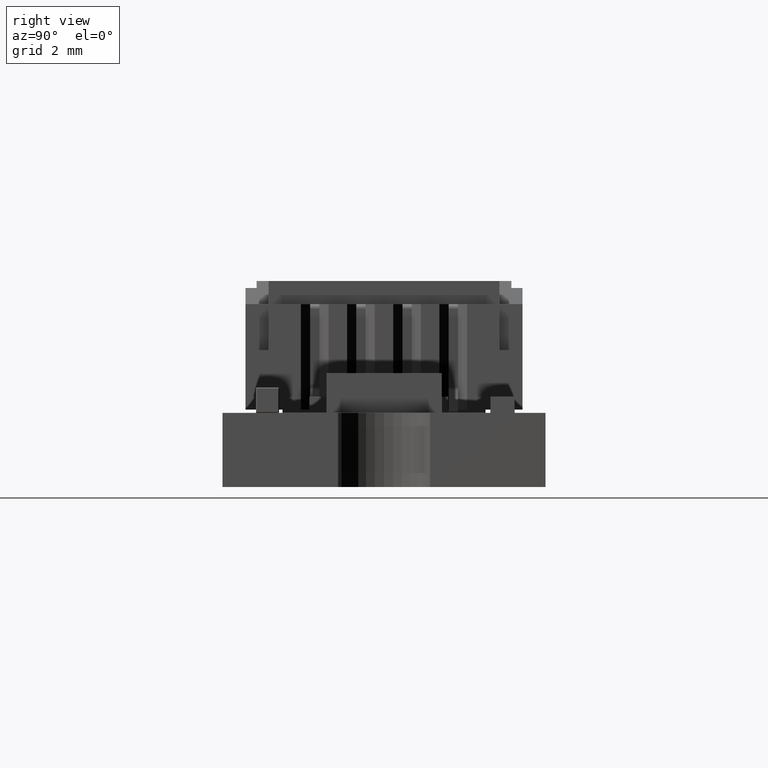
[diagram: clean part render]
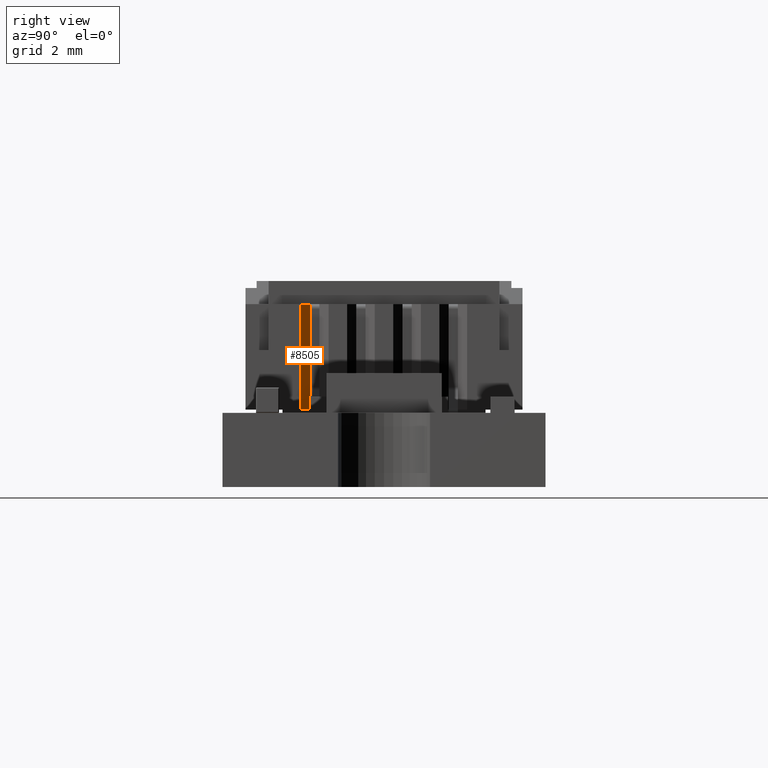
[diagram: same view with one face highlighted and labeled with its STEP entity id]
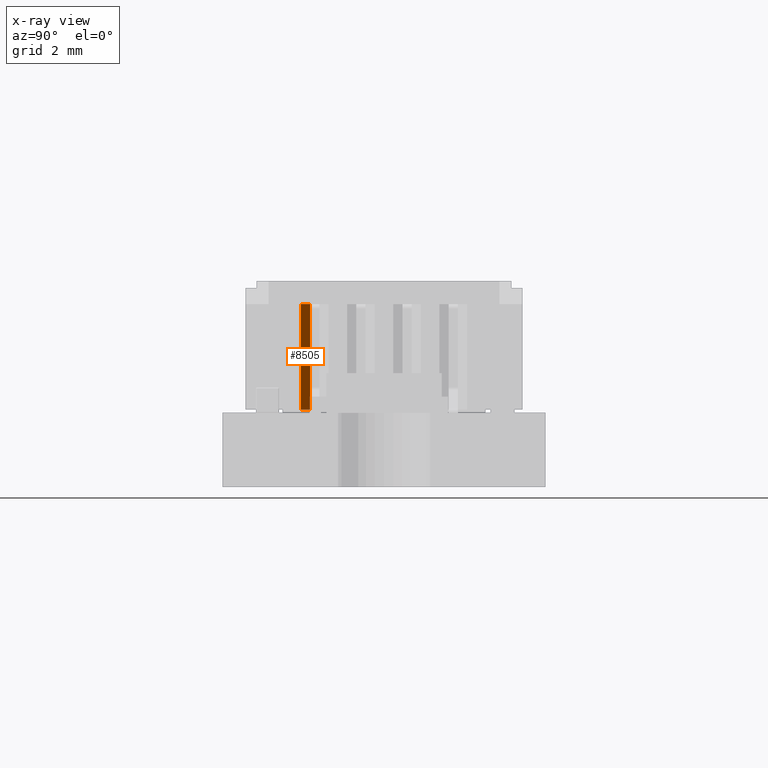
[diagram: x-ray of the same camera — body ghosted, the highlighted face saturated]
A machine part, right view. The second image highlights one B-rep face of the part: STEP entity #8505.
The next image is the same camera in x-ray: the body ghosted, the highlighted face saturated — about 1% of this face is hidden behind the body in this view.
In plain terms, the highlighted planar face has unit normal (0.7071, 0.7071, 0).
Its self-contained STEP definition (entity closure, byte-faithful):
#6371 = VERTEX_POINT('',#6372);
#6372 = CARTESIAN_POINT('',(1.6,0.47,-0.155));
#6378 = EDGE_CURVE('',#6371,#6379,#6381,.T.);
#6379 = VERTEX_POINT('',#6380);
#6380 = CARTESIAN_POINT('',(1.8,0.47,-0.355));
#6381 = LINE('',#6382,#6383);
#6382 = CARTESIAN_POINT('',(1.8,0.47,-0.355));
#6383 = VECTOR('',#6384,1.);
#6384 = DIRECTION('',(0.707106781187,9.583083854271E-17,-0.707106781187)
  );
#8036 = VERTEX_POINT('',#8037);
#8037 = CARTESIAN_POINT('',(1.8,2.755,-0.355));
#8043 = EDGE_CURVE('',#8036,#8044,#8046,.T.);
#8044 = VERTEX_POINT('',#8045);
#8045 = CARTESIAN_POINT('',(1.6,2.755,-0.155));
#8046 = LINE('',#8047,#8048);
#8047 = CARTESIAN_POINT('',(1.8,2.755,-0.355));
#8048 = VECTOR('',#8049,1.);
#8049 = DIRECTION('',(-0.707106781187,-3.963470586361E-45,0.707106781187
    ));
#8491 = EDGE_CURVE('',#6379,#8036,#8492,.T.);
#8492 = LINE('',#8493,#8494);
#8493 = CARTESIAN_POINT('',(1.8,2.755,-0.355));
#8494 = VECTOR('',#8495,1.);
#8495 = DIRECTION('',(2.486182800327E-29,1.,3.491483361109E-15));
#8505 = ADVANCED_FACE('',(#8506),#8517,.T.);
#8506 = FACE_BOUND('',#8507,.T.);
#8507 = EDGE_LOOP('',(#8508,#8509,#8515,#8516));
#8508 = ORIENTED_EDGE('',*,*,#6378,.F.);
#8509 = ORIENTED_EDGE('',*,*,#8510,.F.);
#8510 = EDGE_CURVE('',#8044,#6371,#8511,.T.);
#8511 = LINE('',#8512,#8513);
#8512 = CARTESIAN_POINT('',(1.6,0.47,-0.155));
#8513 = VECTOR('',#8514,1.);
#8514 = DIRECTION('',(-2.486182800327E-29,-1.,-3.491483361109E-15));
#8515 = ORIENTED_EDGE('',*,*,#8043,.F.);
#8516 = ORIENTED_EDGE('',*,*,#8491,.F.);
#8517 = PLANE('',#8518);
#8518 = AXIS2_PLACEMENT_3D('',#8519,#8520,#8521);
#8519 = CARTESIAN_POINT('',(1.8,3.255,-0.355));
#8520 = DIRECTION('',(-0.707106781187,2.46885156104E-15,-0.707106781187)
  );
#8521 = DIRECTION('',(-2.484911851446E-29,-1.,-3.491483361109E-15));